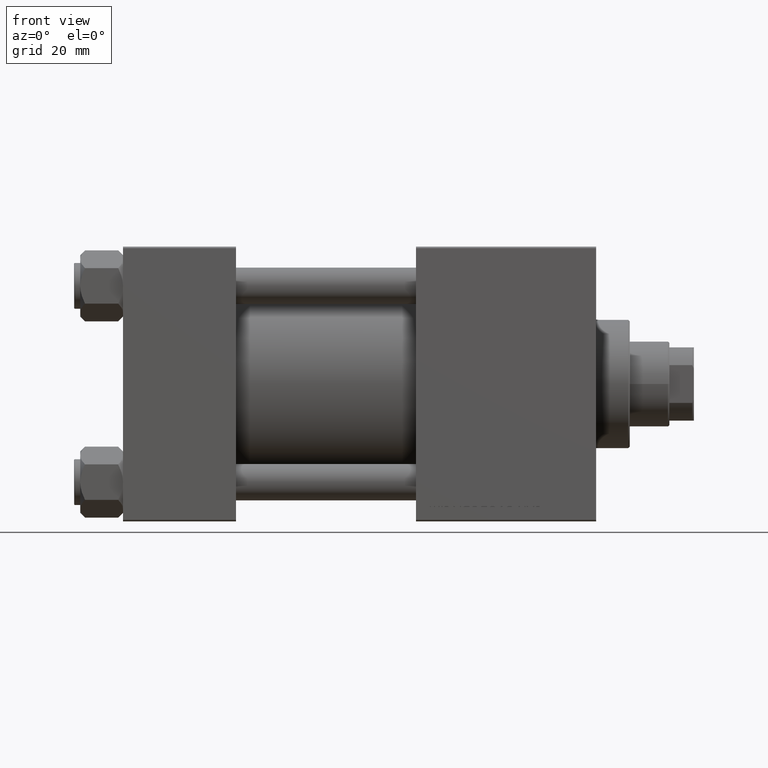
[diagram: clean part render]
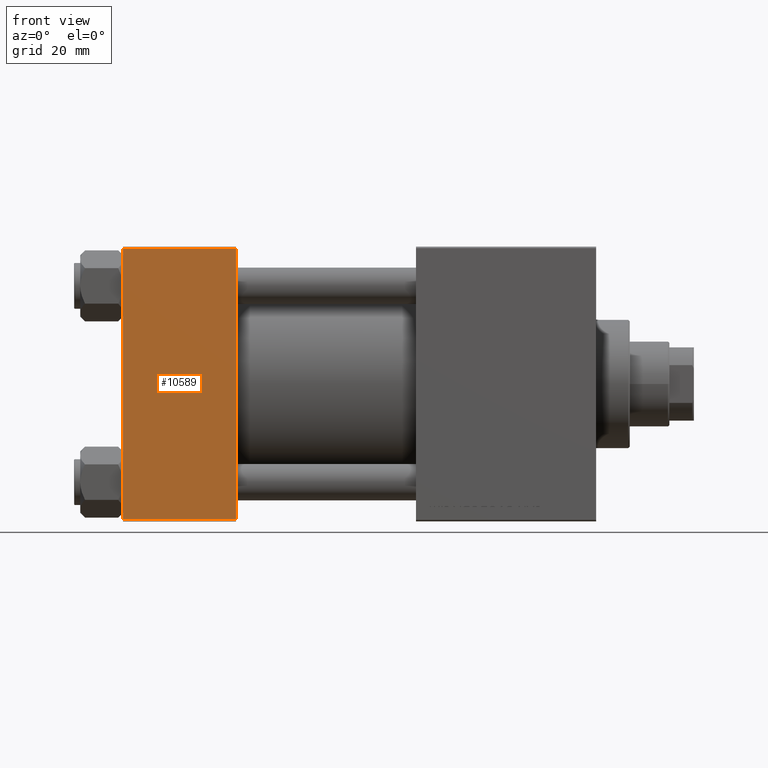
[diagram: same view with one face highlighted and labeled with its STEP entity id]
A machine part, front view. The second image highlights one B-rep face of the part: STEP entity #10589.
In plain terms, the highlighted planar face has unit normal (0, 1, 0).
Its self-contained STEP definition (entity closure, byte-faithful):
#170 = DIRECTION ( 'NONE',  ( -1.000000000000000000, 0.000000000000000000, 0.000000000000000000 ) ) ;
#725 = ORIENTED_EDGE ( 'NONE', *, *, #1724, .F. ) ;
#1724 = EDGE_CURVE ( 'NONE', #26502, #32627, #3469, .T. ) ;
#3469 = LINE ( 'NONE', #8280, #26174 ) ;
#4004 = VECTOR ( 'NONE', #170, 1000.000000000000000 ) ;
#5472 = EDGE_CURVE ( 'NONE', #38950, #43757, #37276, .T. ) ;
#6551 = CARTESIAN_POINT ( 'NONE',  ( 0.000000000000000000, -45.00000000000000711, 45.00000000000000000 ) ) ;
#8280 = CARTESIAN_POINT ( 'NONE',  ( 37.00000000000000000, -45.00000000000000711, 45.00000000000000000 ) ) ;
#8750 = VECTOR ( 'NONE', #25480, 1000.000000000000000 ) ;
#9048 = ORIENTED_EDGE ( 'NONE', *, *, #43794, .T. ) ;
#10589 = ADVANCED_FACE ( 'NONE', ( #33851 ), #14031, .F. ) ;
#10690 = VECTOR ( 'NONE', #48448, 1000.000000000000000 ) ;
#11594 = LINE ( 'NONE', #38766, #4004 ) ;
#14031 = PLANE ( 'NONE',  #31057 ) ;
#18873 = CARTESIAN_POINT ( 'NONE',  ( 37.00000000000000000, -45.00000000000000711, 45.00000000000000000 ) ) ;
#20152 = ORIENTED_EDGE ( 'NONE', *, *, #50226, .T. ) ;
#23149 = EDGE_LOOP ( 'NONE', ( #36126, #9048, #725, #20152 ) ) ;
#23761 = DIRECTION ( 'NONE',  ( 0.000000000000000000, 7.709882115452476934E-17, -1.000000000000000000 ) ) ;
#25480 = DIRECTION ( 'NONE',  ( 1.000000000000000000, 0.000000000000000000, 0.000000000000000000 ) ) ;
#26174 = VECTOR ( 'NONE', #23761, 1000.000000000000000 ) ;
#26502 = VERTEX_POINT ( 'NONE', #46200 ) ;
#27036 = CARTESIAN_POINT ( 'NONE',  ( 0.000000000000000000, -45.00000000000000711, 44.49999999999997158 ) ) ;
#30616 = CARTESIAN_POINT ( 'NONE',  ( 37.00000000000000000, -45.00000000000000000, -44.49999999999995737 ) ) ;
#31057 = AXIS2_PLACEMENT_3D ( 'NONE', #18873, #38175, #46033 ) ;
#32610 = CARTESIAN_POINT ( 'NONE',  ( 37.00000000000000000, -45.00000000000000000, -44.49999999999998579 ) ) ;
#32627 = VERTEX_POINT ( 'NONE', #30616 ) ;
#33851 = FACE_OUTER_BOUND ( 'NONE', #23149, .T. ) ;
#36126 = ORIENTED_EDGE ( 'NONE', *, *, #5472, .T. ) ;
#37276 = LINE ( 'NONE', #6551, #10690 ) ;
#38175 = DIRECTION ( 'NONE',  ( -0.000000000000000000, 1.000000000000000000, 7.709882115452478166E-17 ) ) ;
#38766 = CARTESIAN_POINT ( 'NONE',  ( 37.00000000000000000, -45.00000000000000711, 44.49999999999997158 ) ) ;
#38950 = VERTEX_POINT ( 'NONE', #27036 ) ;
#43757 = VERTEX_POINT ( 'NONE', #44022 ) ;
#43794 = EDGE_CURVE ( 'NONE', #43757, #32627, #45015, .T. ) ;
#44022 = CARTESIAN_POINT ( 'NONE',  ( 0.000000000000000000, -45.00000000000000000, -44.49999999999995737 ) ) ;
#45015 = LINE ( 'NONE', #32610, #8750 ) ;
#46033 = DIRECTION ( 'NONE',  ( 0.000000000000000000, -7.709882115452478166E-17, 1.000000000000000000 ) ) ;
#46200 = CARTESIAN_POINT ( 'NONE',  ( 37.00000000000000000, -45.00000000000000711, 44.49999999999997158 ) ) ;
#48448 = DIRECTION ( 'NONE',  ( 0.000000000000000000, 7.709882115452476934E-17, -1.000000000000000000 ) ) ;
#50226 = EDGE_CURVE ( 'NONE', #26502, #38950, #11594, .T. ) ;